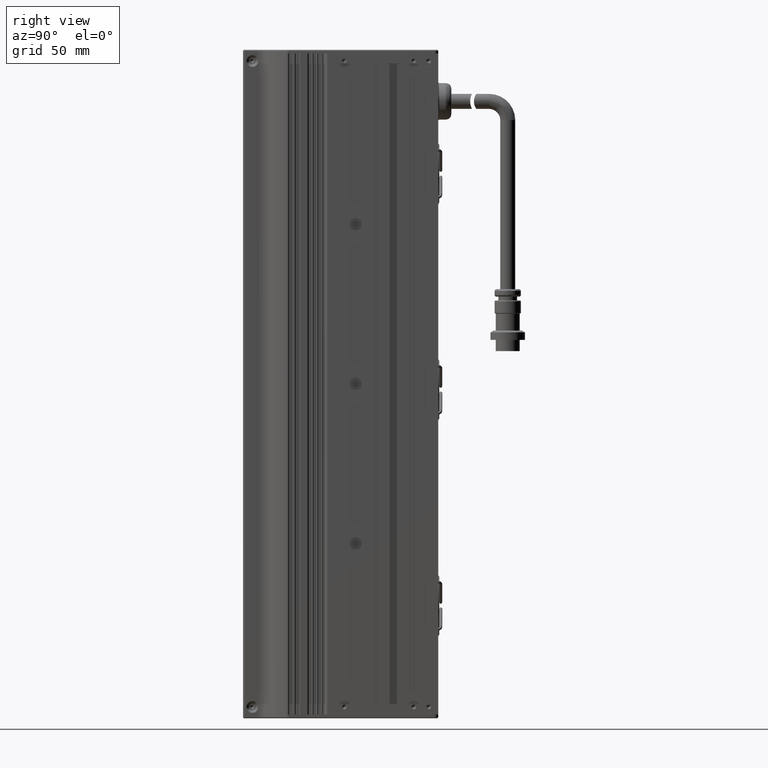
[diagram: clean part render]
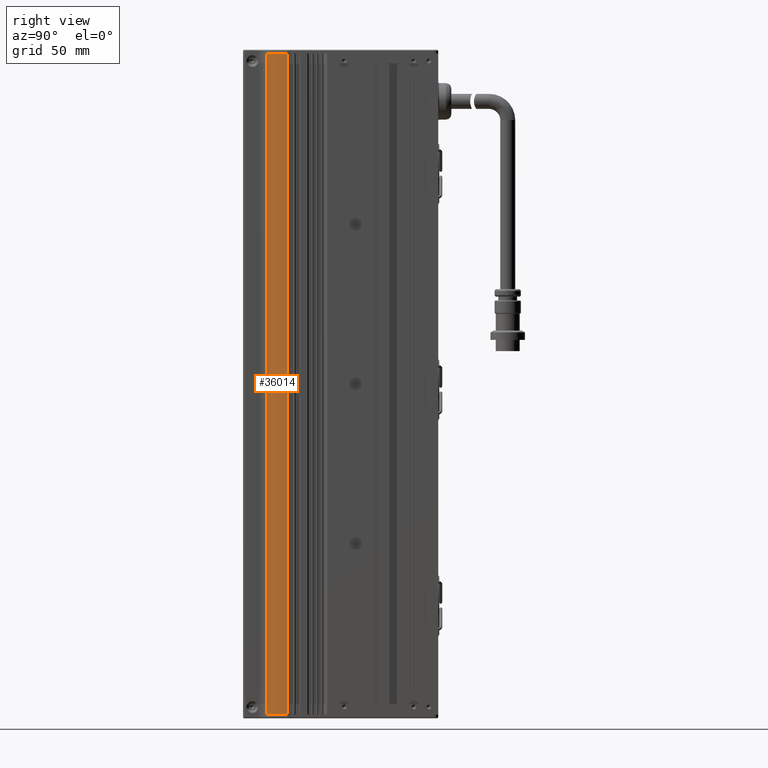
[diagram: same view with one face highlighted and labeled with its STEP entity id]
A machine part, right view. The second image highlights one B-rep face of the part: STEP entity #36014.
In plain terms, the highlighted cylindrical surface (partial cylindrical patch) has radius 20 mm, axis along (0, 0, 1).
Its self-contained STEP definition (entity closure, byte-faithful):
#607 = CARTESIAN_POINT ( 'NONE',  ( -13.16201180637545000, -36.56709289963591700, -176.0000000000000000 ) ) ;
#4496 = VECTOR ( 'NONE', #87373, 1000.000000000000000 ) ;
#4538 = ORIENTED_EDGE ( 'NONE', *, *, #85580, .T. ) ;
#9752 = CARTESIAN_POINT ( 'NONE',  ( -20.30356058373321200, -47.14439554117088000, 176.0000000000000000 ) ) ;
#10511 = LINE ( 'NONE', #40143, #66361 ) ;
#12694 = LINE ( 'NONE', #26085, #4496 ) ;
#12941 = DIRECTION ( 'NONE',  ( -0.0000000000000000000, -1.665334536937734300E-016, -1.000000000000000000 ) ) ;
#14530 = DIRECTION ( 'NONE',  ( -0.0000000000000000000, -1.665334536937734300E-016, -1.000000000000000000 ) ) ;
#20701 = CARTESIAN_POINT ( 'NONE',  ( -32.44205650825910700, -31.24921021069214400, -176.0000000000000000 ) ) ;
#23677 = CARTESIAN_POINT ( 'NONE',  ( -32.44205650825910700, -31.24921021069208700, 176.0000000000000000 ) ) ;
#23839 = DIRECTION ( 'NONE',  ( 0.0000000000000000000, 1.665334536937734300E-016, 1.000000000000000000 ) ) ;
#24164 = EDGE_LOOP ( 'NONE', ( #49342, #52710, #4538, #43284 ) ) ;
#24479 = VERTEX_POINT ( 'NONE', #40288 ) ;
#25941 = VERTEX_POINT ( 'NONE', #54525 ) ;
#26085 = CARTESIAN_POINT ( 'NONE',  ( -20.30356058373321200, -47.14439554117093000, -176.0000000000000000 ) ) ;
#31788 = EDGE_CURVE ( 'NONE', #109159, #24479, #39066, .T. ) ;
#36014 = ADVANCED_FACE ( 'NONE', ( #49223 ), #58796, .T. ) ;
#39066 = CIRCLE ( 'NONE', #77835, 19.99999999999999600 ) ;
#40143 = CARTESIAN_POINT ( 'NONE',  ( -13.16201180637545000, -36.56709289963592400, -176.0000000000000000 ) ) ;
#40288 = CARTESIAN_POINT ( 'NONE',  ( -20.30356058373321200, -47.14439554117093000, -176.0000000000000000 ) ) ;
#43284 = ORIENTED_EDGE ( 'NONE', *, *, #86395, .T. ) ;
#47155 = DIRECTION ( 'NONE',  ( 1.000000000000000000, 0.0000000000000000000, 0.0000000000000000000 ) ) ;
#48744 = CIRCLE ( 'NONE', #93198, 19.99999999999999600 ) ;
#49223 = FACE_OUTER_BOUND ( 'NONE', #24164, .T. ) ;
#49342 = ORIENTED_EDGE ( 'NONE', *, *, #31788, .F. ) ;
#52710 = ORIENTED_EDGE ( 'NONE', *, *, #63731, .T. ) ;
#54525 = CARTESIAN_POINT ( 'NONE',  ( -13.16201180637545000, -36.56709289963586000, 176.0000000000000000 ) ) ;
#58796 = CYLINDRICAL_SURFACE ( 'NONE', #91285, 19.99999999999999600 ) ;
#63374 = DIRECTION ( 'NONE',  ( 1.000000000000000000, 0.0000000000000000000, 0.0000000000000000000 ) ) ;
#63731 = EDGE_CURVE ( 'NONE', #109159, #25941, #10511, .T. ) ;
#66361 = VECTOR ( 'NONE', #23839, 1000.000000000000000 ) ;
#72689 = CARTESIAN_POINT ( 'NONE',  ( -32.44205650825910700, -31.24921021069214400, -176.0000000000000000 ) ) ;
#77835 = AXIS2_PLACEMENT_3D ( 'NONE', #72689, #12941, #47155 ) ;
#85580 = EDGE_CURVE ( 'NONE', #25941, #101387, #48744, .T. ) ;
#86395 = EDGE_CURVE ( 'NONE', #101387, #24479, #12694, .T. ) ;
#87373 = DIRECTION ( 'NONE',  ( -0.0000000000000000000, -1.665334536937734300E-016, -1.000000000000000000 ) ) ;
#91285 = AXIS2_PLACEMENT_3D ( 'NONE', #20701, #98242, #63374 ) ;
#92893 = DIRECTION ( 'NONE',  ( 1.000000000000000000, 0.0000000000000000000, 0.0000000000000000000 ) ) ;
#93198 = AXIS2_PLACEMENT_3D ( 'NONE', #23677, #14530, #92893 ) ;
#98242 = DIRECTION ( 'NONE',  ( 0.0000000000000000000, 1.665334536937734300E-016, 1.000000000000000000 ) ) ;
#101387 = VERTEX_POINT ( 'NONE', #9752 ) ;
#109159 = VERTEX_POINT ( 'NONE', #607 ) ;